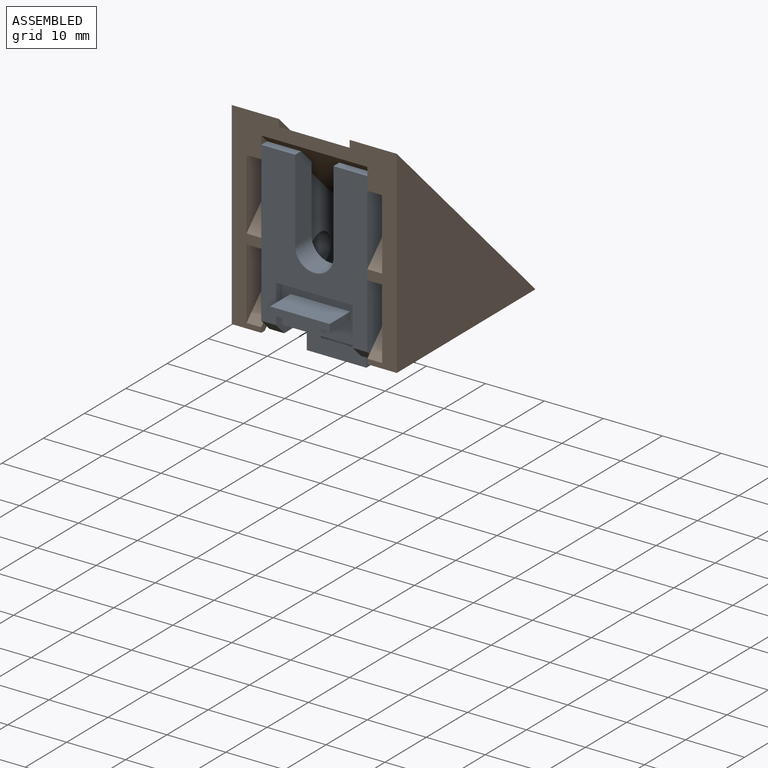
[diagram: assembled view]
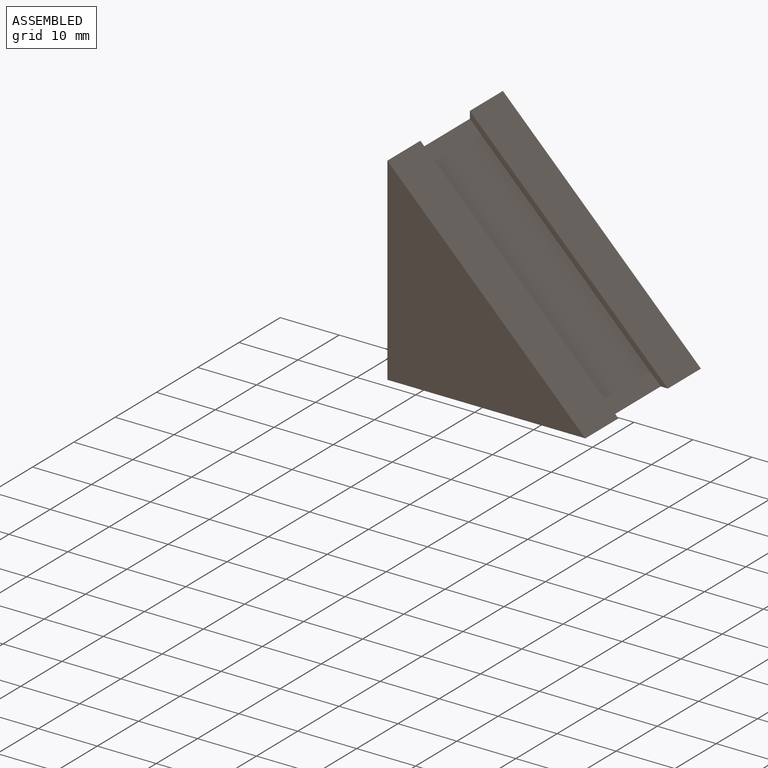
[diagram: assembled view, second angle]
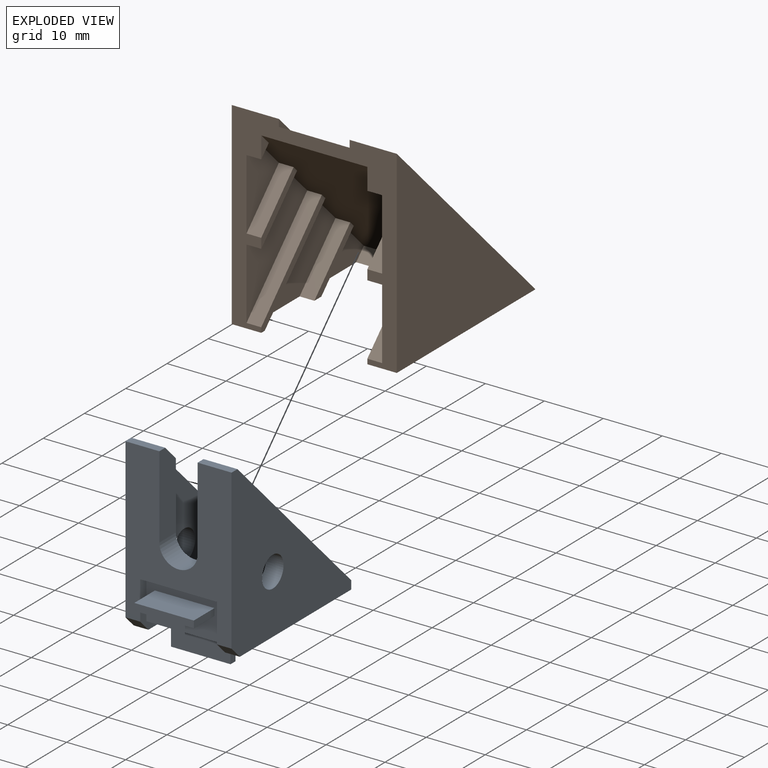
[diagram: exploded view]
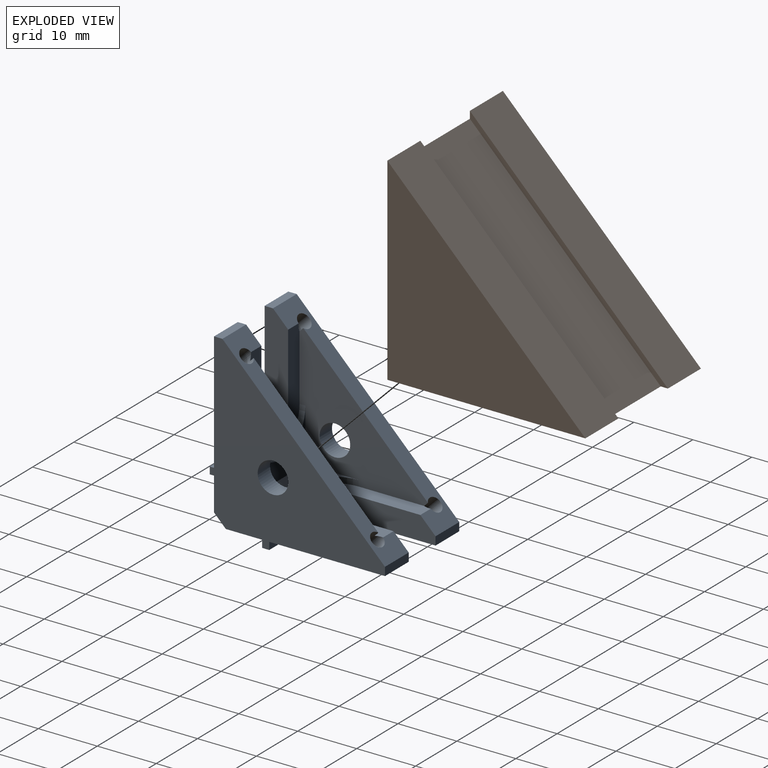
[diagram: exploded view, second angle]
ASSEMBLY  parts=2 mates=3
PART A: 52 faces, bbox 18x32.5x32.5 mm
  f0: plane 12x9mm, normal (0,0,1), area 51.5mm2, adj f1,f2,f44,f48
  f1: plane 12x9mm, normal (0,1,0), area 51.5mm2, adj f0,f2,f44,f46
  f2: plane 21.78x21.78mm, normal (1,0,0), area 210.3mm2, adj f0,f1,f14,f36,f38,f45,f46,f47
  f3: cylinder r=3.25mm len=6.5mm, axis (0,0,1), area 40.8mm2, adj f4,f8,f19,f49
  f4: plane 14x4mm, normal (1,0,0), area 52.7mm2, adj f3,f7,f8,f14,f49
  f5: plane 29x29mm, normal (1,0,0), area 437.4mm2, adj f8,f9,f10,f12,f16,f50,f51
  f6: plane 29x29mm, normal (-1,0,0), area 437.4mm2, adj f7,f8,f10,f11,f13,f14,f45
  f7: plane 5.75x1.42mm, normal (0,1,0), area 8.2mm2, adj f4,f6,f8,f14
  f8: plane 27x18mm, normal (0,0,-1), area 293.9mm2, adj f3,f4,f5,f6,f7,f9,f13,f19
  f9: plane 2.5x2mm, normal (0,-0.71,-0.71), area 7.1mm2, adj f5,f8,f10,f25
  f10: plane 27x18mm, normal (0,-1,0), area 293.9mm2, adj f5,f6,f9,f11,f12,f13,f15,f17
  f11: plane 5.75x1.42mm, normal (0,0,1), area 8.2mm2, adj f6,f10,f14,f17
  f12: plane 5.75x1.42mm, normal (0,0,1), area 8.2mm2, adj f5,f10,f15,f16
  f13: plane 2.5x2mm, normal (0,-0.71,-0.71), area 7.1mm2, adj f6,f8,f10,f24
  f14: plane 27.58x27.58mm, normal (0,0.71,0.71), area 127.6mm2, adj f2,f4,f6,f7,f11,f17,f36,f38
  f15: plane 14x4mm, normal (-1,0,0), area 52.7mm2, adj f10,f12,f16,f18,f47
  f16: plane 27.58x27.58mm, normal (0,0.71,0.71), area 127.6mm2, adj f5,f12,f15,f19,f40,f42,f44,f47
  f17: plane 14x4mm, normal (1,0,0), area 52.7mm2, adj f10,f11,f14,f18,f47
  f18: cylinder r=3.25mm len=6.5mm, axis (0,1,0), area 40.8mm2, adj f10,f15,f17,f47
  f19: plane 14x4mm, normal (-1,0,0), area 52.7mm2, adj f3,f8,f16,f49,f51
  f20: plane 13x7mm, normal (0,-1,0), area 78.9mm2, adj f21,f23,f24,f25,f31,f33,f34,f35
  f21: plane 13x1.5mm, normal (0,0,-1), area 19.5mm2, adj f10,f20,f24,f25
  f22: plane 13x1.5mm, normal (0,-1,0), area 19.5mm2, adj f8,f23,f24,f25
  f23: plane 13x7mm, normal (0,0,-1), area 78.9mm2, adj f20,f22,f24,f25,f26,f27,f29,f30
  f24: plane 8.5x8.5mm, normal (1,0,0), area 21.2mm2, adj f8,f10,f13,f20,f21,f22,f23
  f25: plane 8.5x8.5mm, normal (-1,0,0), area 21.2mm2, adj f8,f9,f10,f20,f21,f22,f23
  f26: plane 10.1x5mm, normal (0,1,0), area 50.5mm2, adj f23,f28,f29,f30
  f27: plane 10.1x5mm, normal (0,-1,0), area 50.5mm2, adj f23,f28,f29,f30
  f28: plane 10.1x1.2mm, normal (0,0,-1), area 12.1mm2, adj f26,f27,f29,f30
  f29: plane 5x1.2mm, normal (-1,0,0), area 6mm2, adj f23,f26,f27,f28
  f30: plane 5x1.2mm, normal (1,0,0), area 6mm2, adj f23,f26,f27,f28
  f31: plane 10.1x5mm, normal (0,0,1), area 50.5mm2, adj f20,f32,f34,f35
  f32: plane 10.1x1.2mm, normal (0,-1,0), area 12.1mm2, adj f31,f33,f34,f35
  f33: plane 10.1x5mm, normal (0,0,-1), area 50.5mm2, adj f20,f32,f34,f35
  f34: plane 5x1.2mm, normal (-1,0,0), area 6mm2, adj f20,f31,f32,f33
  f35: plane 5x1.2mm, normal (1,0,0), area 6mm2, adj f20,f31,f32,f33
  f36: cylinder r=1.25mm len=4.74mm, axis (0,-0.71,-0.71), area 32.5mm2, adj f2,f14,f37,f49
  f37: plane 2.5x1.77mm, normal (0,0.71,0.71), area 4.9mm2, adj f36
  f38: cylinder r=1.25mm len=4.74mm, axis (0,-0.71,-0.71), area 32.5mm2, adj f2,f14,f39,f47
  f39: plane 2.5x1.77mm, normal (0,0.71,0.71), area 4.9mm2, adj f38
  f40: cylinder r=1.25mm len=4.74mm, axis (0,-0.71,-0.71), area 32.5mm2, adj f16,f41,f44,f47
  f41: plane 2.5x1.77mm, normal (0,0.71,0.71), area 4.9mm2, adj f40
  f42: cylinder r=1.25mm len=4.74mm, axis (0,-0.71,-0.71), area 32.5mm2, adj f16,f43,f44,f49
  f43: plane 2.5x1.77mm, normal (0,0.71,0.71), area 4.9mm2, adj f42
  f44: plane 21.78x21.78mm, normal (-1,0,0), area 210.3mm2, adj f0,f1,f16,f40,f42,f46,f47,f48
  f45: cylinder r=2.6mm len=5.2mm, axis (-1,0,0), area 49mm2, adj f2,f6
  f46: cylinder r=6mm len=12mm, axis (0,-1,0), area 18.8mm2, adj f1,f2,f44,f47
  f47: plane 18.42x12mm, normal (0,1,0), area 114.3mm2, adj f2,f14,f15,f16,f17,f18,f38,f40
  f48: cylinder r=6mm len=12mm, axis (0,0,-1), area 18.8mm2, adj f0,f2,f44,f49
  f49: plane 18.42x12mm, normal (0,0,1), area 114.3mm2, adj f2,f3,f4,f14,f16,f19,f36,f42
  f50: cylinder r=2.6mm len=5.2mm, axis (-1,0,0), area 49mm2, adj f5,f44
  f51: plane 5.75x1.42mm, normal (0,1,0), area 8.2mm2, adj f5,f8,f16,f19
PART B: 44 faces, bbox 33.6x33.6x28 mm
  f0: plane 33.6x33.6mm, normal (0.71,0.71,0), area 380.1mm2, adj f1,f3,f4,f42
  f1: plane 33.6x33.6mm, normal (0,0,1), area 564.5mm2, adj f0,f3,f4
  f2: plane 33.6x33.6mm, normal (0.71,0.71,0), area 380.1mm2, adj f3,f4,f5,f41
  f3: plane 33.6x28mm, normal (-1,0,0), area 261.3mm2, adj f0,f1,f2,f4,f5,f6,f7,f8
  f4: plane 33.6x28mm, normal (0,-1,0), area 261.3mm2, adj f0,f1,f2,f3,f5,f15,f16,f17
  f5: plane 33.6x33.6mm, normal (0,0,-1), area 564.5mm2, adj f2,f3,f4
  f6: plane 3.68x1.84mm, normal (0,0,1), area 3.4mm2, adj f3,f39,f40
  f7: plane 3.68x1.84mm, normal (0,0,-1), area 3.4mm2, adj f3,f8,f40
  f8: plane 2.5x1.84mm, normal (0.71,-0.71,0), area 6.5mm2, adj f3,f7,f9,f40
  f9: plane 13.86x7.85mm, normal (0,0,-1), area 58.2mm2, adj f3,f8,f10,f40
  f10: plane 7.85x7.85mm, normal (-0.71,0.71,0), area 27.7mm2, adj f3,f9,f11,f40
  f11: plane 9.55x8.7mm, normal (0,0,-1), area 14mm2, adj f3,f10,f12,f40
  f12: plane 8.7x8.7mm, normal (0.71,-0.71,0), area 30.8mm2, adj f3,f11,f13,f40
  f13: plane 20.72x14.71mm, normal (0,0,-1), area 140.7mm2, adj f3,f12,f14,f40
  f14: plane 14.71x14.71mm, normal (-0.71,0.71,0), area 52mm2, adj f3,f13,f15,f40
  f15: plane 15.56x15.56mm, normal (0,0,-1), area 25.3mm2, adj f3,f4,f14,f16,f40
  f16: plane 14.71x14.71mm, normal (0.71,-0.71,0), area 52mm2, adj f4,f15,f17,f40
  f17: plane 20.72x14.71mm, normal (0,0,-1), area 140.7mm2, adj f4,f16,f18,f40
  f18: plane 8.7x8.7mm, normal (-0.71,0.71,0), area 30.8mm2, adj f4,f17,f19,f40
  f19: plane 9.55x8.7mm, normal (0,0,-1), area 14mm2, adj f4,f18,f20,f40
  f20: plane 7.85x7.85mm, normal (0.71,-0.71,0), area 27.7mm2, adj f4,f19,f21,f40
  f21: plane 13.86x7.85mm, normal (0,0,-1), area 58.2mm2, adj f4,f20,f22,f40
  f22: plane 2.5x1.84mm, normal (-0.71,0.71,0), area 6.5mm2, adj f4,f21,f23,f40
  f23: plane 3.68x1.84mm, normal (0,0,-1), area 3.4mm2, adj f4,f22,f40
  f24: plane 3.68x1.84mm, normal (0,0,1), area 3.4mm2, adj f4,f25,f40
  f25: plane 2.5x1.84mm, normal (-0.71,0.71,0), area 6.5mm2, adj f4,f24,f26,f40
  f26: plane 13.86x7.85mm, normal (0,0,1), area 58.2mm2, adj f4,f25,f27,f40
  f27: plane 7.85x7.85mm, normal (0.71,-0.71,0), area 27.7mm2, adj f4,f26,f28,f40
  f28: plane 9.55x8.7mm, normal (0,0,1), area 14mm2, adj f4,f27,f29,f40
  f29: plane 8.7x8.7mm, normal (-0.71,0.71,0), area 30.8mm2, adj f4,f28,f30,f40
  f30: plane 20.72x14.71mm, normal (0,0,1), area 140.7mm2, adj f4,f29,f31,f40
  f31: plane 14.71x14.71mm, normal (0.71,-0.71,0), area 52mm2, adj f4,f30,f32,f40
  f32: plane 15.56x15.56mm, normal (0,0,1), area 25.3mm2, adj f3,f4,f31,f33,f40
  f33: plane 14.71x14.71mm, normal (-0.71,0.71,0), area 52mm2, adj f3,f32,f34,f40
  f34: plane 20.72x14.71mm, normal (0,0,1), area 140.7mm2, adj f3,f33,f35,f40
  f35: plane 8.7x8.7mm, normal (0.71,-0.71,0), area 30.8mm2, adj f3,f34,f36,f40
  f36: plane 9.55x8.7mm, normal (0,0,1), area 14mm2, adj f3,f35,f37,f40
  f37: plane 7.85x7.85mm, normal (-0.71,0.71,0), area 27.7mm2, adj f3,f36,f38,f40
  f38: plane 13.86x7.85mm, normal (0,0,1), area 58.2mm2, adj f3,f37,f39,f40
  f39: plane 2.5x1.84mm, normal (0.71,-0.71,0), area 6.5mm2, adj f3,f6,f38,f40
  f40: plane 30.26x30.26mm, normal (-0.71,-0.71,0), area 940.4mm2, adj f3,f4,f6,f7,f8,f9,f10,f11
  f41: plane 33.6x33.6mm, normal (0,0,1), area 40.1mm2, adj f2,f3,f4,f43
  f42: plane 33.6x33.6mm, normal (0,0,-1), area 40.1mm2, adj f0,f3,f4,f43
  f43: plane 32.39x32.39mm, normal (0.71,0.71,0), area 549.6mm2, adj f3,f4,f41,f42
PLACE A at identity fixed
PLACE B rot(axis=(0,-1,0),90deg) t=(0,0,0.16)mm
MATE planar B.f28 <-> A.f5  axis (-1,0,0) through (9,0,14.72)mm
MATE planar B.f40 <-> A.f14  axis (0,-0.71,-0.71) through (0,15.13,15.29)mm
MATE planar B.f4 <-> A.f10  axis (0,-1,0) through (-9,0,28.58)mm
